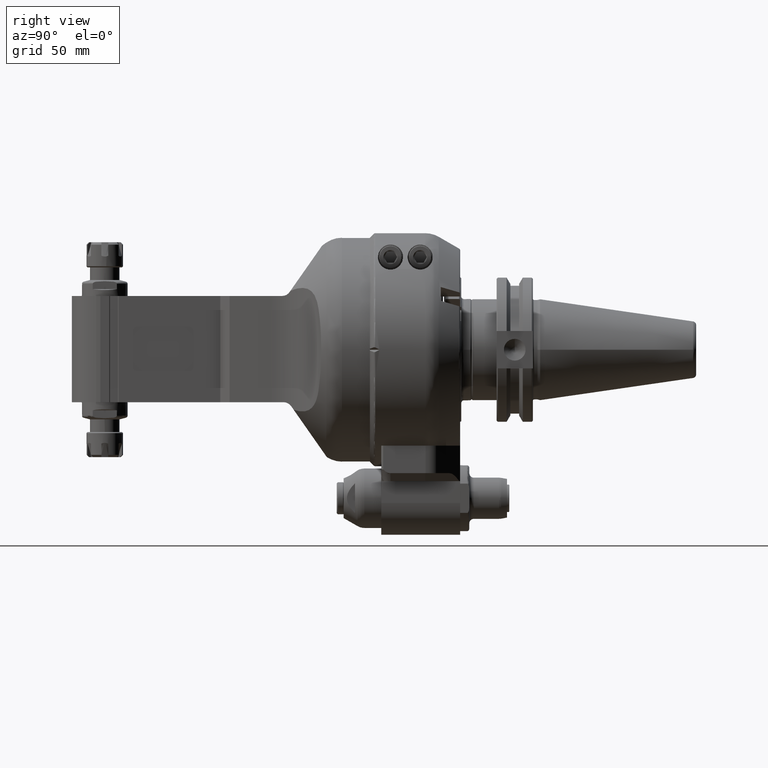
[diagram: clean part render]
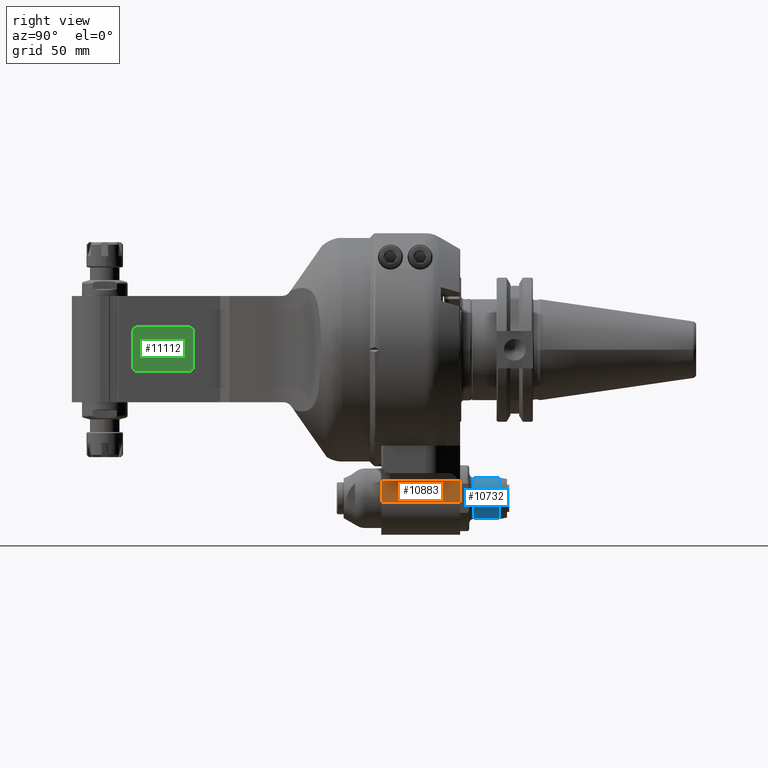
[diagram: same view with three faces highlighted in distinct colors, each labeled with its STEP entity id]
A machine part, right view with three faces highlighted in distinct colors.
Their STEP definitions:

[orange] entity #10883 — the highlighted planar face has unit normal (-1, 0, 0).
#69=(
BOUNDED_CURVE()
B_SPLINE_CURVE(2,(#19609,#19610,#19611),.UNSPECIFIED.,.F.,.F.)
B_SPLINE_CURVE_WITH_KNOTS((3,3),(-2.58287776726093,-2.57434975898472),
 .UNSPECIFIED.)
CURVE()
GEOMETRIC_REPRESENTATION_ITEM()
RATIONAL_B_SPLINE_CURVE((1.44254286468392,1.44297118444748,1.44339185140923))
REPRESENTATION_ITEM('')
);
#160=B_SPLINE_CURVE_WITH_KNOTS('',3,(#19612,#19613,#19614,#19615,#19616,
#19617),.UNSPECIFIED.,.F.,.F.,(4,1,1,4),(0.,0.3333333333333,0.6666666666667,
1.),.UNSPECIFIED.);
#449=LINE('',#16500,#1221);
#494=LINE('',#16884,#1266);
#497=LINE('',#16890,#1269);
#648=LINE('',#19452,#1420);
#664=LINE('',#19607,#1436);
#1221=VECTOR('',#12979,9.5);
#1266=VECTOR('',#13110,0.7629679276389);
#1269=VECTOR('',#13113,8.70839142844);
#1420=VECTOR('',#13880,34.5);
#1436=VECTOR('',#13932,34.5);
#2355=PLANE('',#11868);
#2778=FACE_OUTER_BOUND('',#3482,.T.);
#3482=EDGE_LOOP('',(#8489,#8490,#8491,#8492,#8493,#8494,#8495));
#4717=VERTEX_POINT('',#16497);
#4718=VERTEX_POINT('',#16499);
#4782=VERTEX_POINT('',#16881);
#4783=VERTEX_POINT('',#16883);
#4785=VERTEX_POINT('',#16887);
#4786=VERTEX_POINT('',#16889);
#5031=VERTEX_POINT('',#19608);
#5834=EDGE_CURVE('',#4718,#4717,#449,.T.);
#5915=EDGE_CURVE('',#4783,#4782,#494,.T.);
#5918=EDGE_CURVE('',#4786,#4785,#497,.T.);
#6287=EDGE_CURVE('',#4782,#4718,#648,.T.);
#6310=EDGE_CURVE('',#4786,#4717,#664,.T.);
#6311=EDGE_CURVE('',#5031,#4785,#69,.T.);
#6312=EDGE_CURVE('',#4783,#5031,#160,.T.);
#8489=ORIENTED_EDGE('',*,*,#6287,.T.);
#8490=ORIENTED_EDGE('',*,*,#5834,.T.);
#8491=ORIENTED_EDGE('',*,*,#6310,.F.);
#8492=ORIENTED_EDGE('',*,*,#5918,.T.);
#8493=ORIENTED_EDGE('',*,*,#6311,.F.);
#8494=ORIENTED_EDGE('',*,*,#6312,.F.);
#8495=ORIENTED_EDGE('',*,*,#5915,.T.);
#10883=ADVANCED_FACE('',(#2778),#2355,.F.);
#11868=AXIS2_PLACEMENT_3D('',#19606,#13930,#13931);
#12979=DIRECTION('',(0.,0.,-1.));
#13110=DIRECTION('',(-3.073496587321E-9,-8.940363043052E-13,1.));
#13113=DIRECTION('',(0.,0.,1.));
#13880=DIRECTION('',(0.,-1.,0.));
#13930=DIRECTION('center_axis',(-1.,0.,0.));
#13931=DIRECTION('ref_axis',(0.,-1.,0.));
#13932=DIRECTION('',(0.,-1.,0.));
#16497=CARTESIAN_POINT('',(15.,5.,-67.));
#16499=CARTESIAN_POINT('',(15.,5.,-57.5));
#16500=CARTESIAN_POINT('',(15.,5.,-57.5));
#16881=CARTESIAN_POINT('',(15.,39.5,-57.5));
#16883=CARTESIAN_POINT('',(15.0000000030541,39.5000000001996,-58.2629679283757));
#16884=CARTESIAN_POINT('',(15.00000000234,39.5,-58.26296792764));
#16887=CARTESIAN_POINT('',(15.,39.5,-58.29160857156));
#16889=CARTESIAN_POINT('',(15.,39.5,-67.));
#16890=CARTESIAN_POINT('',(15.,39.5,-67.));
#19452=CARTESIAN_POINT('',(15.,39.5,-57.5));
#19606=CARTESIAN_POINT('Origin',(15.,52.3,-37.7999976));
#19607=CARTESIAN_POINT('',(15.,39.5,-67.));
#19608=CARTESIAN_POINT('',(14.9999999975262,39.4392080906412,-58.2892304850291));
#19609=CARTESIAN_POINT('Ctrl Pts',(15.,39.4392080907947,-58.2892304853374));
#19610=CARTESIAN_POINT('Ctrl Pts',(15.,39.4696216465868,-58.2904305962974));
#19611=CARTESIAN_POINT('Ctrl Pts',(15.,39.5000000000027,-58.2916085715602));
#19612=CARTESIAN_POINT('Ctrl Pts',(15.00000000234,39.5,-58.26296792764));
#19613=CARTESIAN_POINT('Ctrl Pts',(15.00000000234,39.49325666759,-58.2658556512));
#19614=CARTESIAN_POINT('Ctrl Pts',(14.99999999859,39.47976244941,-58.27165130213));
#19615=CARTESIAN_POINT('Ctrl Pts',(15.00000000141,39.45949859437,-58.28040536456));
#19616=CARTESIAN_POINT('Ctrl Pts',(14.99999999765,39.44597410964,-58.28628201667));
#19617=CARTESIAN_POINT('Ctrl Pts',(14.99999999765,39.43920809102,-58.28923048521));

[blue] entity #10732 — the highlighted cylindrical surface (bore or boss wall) has radius 9 mm, axis along (0, 1, 0).
#513=LINE('',#17250,#1285);
#1285=VECTOR('',#13181,9.);
#1967=CYLINDRICAL_SURFACE('',#11566,9.);
#2627=FACE_OUTER_BOUND('',#3308,.T.);
#3308=EDGE_LOOP('',(#7742,#7743,#7744,#7745,#7746));
#4117=CIRCLE('',#11564,9.);
#4119=CIRCLE('',#11567,9.);
#4120=CIRCLE('',#11568,9.);
#4810=VERTEX_POINT('',#17242);
#4811=VERTEX_POINT('',#17246);
#4812=VERTEX_POINT('',#17247);
#5951=EDGE_CURVE('',#4810,#4810,#4117,.T.);
#5953=EDGE_CURVE('',#4811,#4812,#4119,.T.);
#5954=EDGE_CURVE('',#4812,#4811,#4120,.T.);
#5955=EDGE_CURVE('',#4812,#4810,#513,.T.);
#7742=ORIENTED_EDGE('',*,*,#5953,.F.);
#7743=ORIENTED_EDGE('',*,*,#5954,.F.);
#7744=ORIENTED_EDGE('',*,*,#5955,.T.);
#7745=ORIENTED_EDGE('',*,*,#5951,.F.);
#7746=ORIENTED_EDGE('',*,*,#5955,.F.);
#10732=ADVANCED_FACE('',(#2627),#1967,.T.);
#11564=AXIS2_PLACEMENT_3D('',#17243,#13171,#13172);
#11566=AXIS2_PLACEMENT_3D('',#17245,#13175,#13176);
#11567=AXIS2_PLACEMENT_3D('',#17248,#13177,#13178);
#11568=AXIS2_PLACEMENT_3D('',#17249,#13179,#13180);
#13171=DIRECTION('center_axis',(0.,-1.,0.));
#13172=DIRECTION('ref_axis',(0.,0.,1.));
#13175=DIRECTION('center_axis',(0.,1.,0.));
#13176=DIRECTION('ref_axis',(0.,0.,1.));
#13177=DIRECTION('center_axis',(0.,1.,0.));
#13178=DIRECTION('ref_axis',(0.,0.,1.));
#13179=DIRECTION('center_axis',(0.,1.,0.));
#13180=DIRECTION('ref_axis',(0.,0.,-1.));
#13181=DIRECTION('',(0.,-1.,0.));
#17242=CARTESIAN_POINT('',(-1.10218211923262E-15,45.5,-74.));
#17243=CARTESIAN_POINT('Origin',(0.,45.5,-65.));
#17245=CARTESIAN_POINT('Origin',(0.,31.,-65.));
#17246=CARTESIAN_POINT('',(0.,56.56255668237,-56.));
#17247=CARTESIAN_POINT('',(1.143607243717E-14,56.56255668237,-74.));
#17248=CARTESIAN_POINT('Origin',(0.,56.56255668237,-65.));
#17249=CARTESIAN_POINT('Origin',(0.,56.56255668237,-65.));
#17250=CARTESIAN_POINT('',(-1.10218211923262E-15,31.,-74.));

[green] entity #11112 — the highlighted planar face has unit normal (1, 0, -0).
#916=LINE('',#21594,#1688);
#920=LINE('',#21606,#1692);
#921=LINE('',#21610,#1693);
#922=LINE('',#21613,#1694);
#1688=VECTOR('',#15012,15.5);
#1692=VECTOR('',#15022,22.5);
#1693=VECTOR('',#15025,15.5);
#1694=VECTOR('',#15028,22.5);
#2465=PLANE('',#12283);
#3007=FACE_OUTER_BOUND('',#3745,.T.);
#3745=EDGE_LOOP('',(#9561,#9562,#9563,#9564,#9565,#9566,#9567,#9568));
#4445=CIRCLE('',#12284,2.);
#4446=CIRCLE('',#12285,2.);
#4447=CIRCLE('',#12286,2.);
#4448=CIRCLE('',#12287,2.);
#5361=VERTEX_POINT('',#21592);
#5362=VERTEX_POINT('',#21593);
#5365=VERTEX_POINT('',#21601);
#5366=VERTEX_POINT('',#21603);
#5367=VERTEX_POINT('',#21605);
#5368=VERTEX_POINT('',#21607);
#5369=VERTEX_POINT('',#21609);
#5370=VERTEX_POINT('',#21611);
#6823=EDGE_CURVE('',#5361,#5362,#916,.T.);
#6827=EDGE_CURVE('',#5361,#5365,#4445,.T.);
#6828=EDGE_CURVE('',#5366,#5362,#4446,.T.);
#6829=EDGE_CURVE('',#5366,#5367,#920,.T.);
#6830=EDGE_CURVE('',#5368,#5367,#4447,.T.);
#6831=EDGE_CURVE('',#5368,#5369,#921,.T.);
#6832=EDGE_CURVE('',#5369,#5370,#4448,.T.);
#6833=EDGE_CURVE('',#5370,#5365,#922,.T.);
#9561=ORIENTED_EDGE('',*,*,#6827,.F.);
#9562=ORIENTED_EDGE('',*,*,#6823,.T.);
#9563=ORIENTED_EDGE('',*,*,#6828,.F.);
#9564=ORIENTED_EDGE('',*,*,#6829,.T.);
#9565=ORIENTED_EDGE('',*,*,#6830,.F.);
#9566=ORIENTED_EDGE('',*,*,#6831,.T.);
#9567=ORIENTED_EDGE('',*,*,#6832,.T.);
#9568=ORIENTED_EDGE('',*,*,#6833,.T.);
#11112=ADVANCED_FACE('',(#3007),#2465,.T.);
#12283=AXIS2_PLACEMENT_3D('',#21600,#15016,#15017);
#12284=AXIS2_PLACEMENT_3D('',#21602,#15018,#15019);
#12285=AXIS2_PLACEMENT_3D('',#21604,#15020,#15021);
#12286=AXIS2_PLACEMENT_3D('',#21608,#15023,#15024);
#12287=AXIS2_PLACEMENT_3D('',#21612,#15026,#15027);
#15012=DIRECTION('',(0.,0.,1.));
#15016=DIRECTION('center_axis',(1.,0.,0.));
#15017=DIRECTION('ref_axis',(0.,-1.,0.));
#15018=DIRECTION('center_axis',(-1.,0.,0.));
#15019=DIRECTION('ref_axis',(0.,1.,0.));
#15020=DIRECTION('center_axis',(-1.,0.,0.));
#15021=DIRECTION('ref_axis',(0.,0.,1.));
#15022=DIRECTION('',(0.,-1.,0.));
#15023=DIRECTION('center_axis',(-1.,0.,0.));
#15024=DIRECTION('ref_axis',(0.,-1.,0.));
#15025=DIRECTION('',(0.,0.,-1.));
#15026=DIRECTION('center_axis',(1.,0.,0.));
#15027=DIRECTION('ref_axis',(0.,-1.,0.));
#15028=DIRECTION('',(0.,1.,0.));
#21592=CARTESIAN_POINT('',(14.2,38.75,-7.5));
#21593=CARTESIAN_POINT('',(14.2,38.75,8.));
#21594=CARTESIAN_POINT('',(14.2,38.75,-7.5));
#21600=CARTESIAN_POINT('Origin',(14.2,133.,0.));
#21601=CARTESIAN_POINT('',(14.2,36.75,-9.5));
#21602=CARTESIAN_POINT('Origin',(14.2,36.75,-7.5));
#21603=CARTESIAN_POINT('',(14.2,36.75,10.));
#21604=CARTESIAN_POINT('Origin',(14.2,36.75,8.));
#21605=CARTESIAN_POINT('',(14.2,14.25,10.));
#21606=CARTESIAN_POINT('',(14.2,36.75,10.));
#21607=CARTESIAN_POINT('',(14.2,12.25,8.));
#21608=CARTESIAN_POINT('Origin',(14.2,14.25,8.));
#21609=CARTESIAN_POINT('',(14.2,12.25,-7.5));
#21610=CARTESIAN_POINT('',(14.2,12.25,8.));
#21611=CARTESIAN_POINT('',(14.2,14.25,-9.5));
#21612=CARTESIAN_POINT('Origin',(14.2,14.25,-7.5));
#21613=CARTESIAN_POINT('',(14.2,14.25,-9.5));